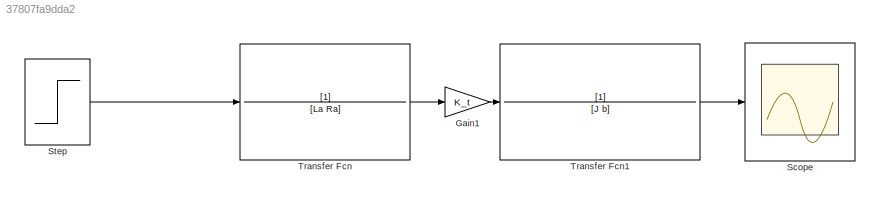
MODEL slx_37807fa9dda2
KIND model
CONFIG AbsTol = auto
CONFIG EnableMultiTasking = off
CONFIG FixedStep = auto
CONFIG MaxStep = auto
CONFIG MinStep = auto
CONFIG RelTol = 1e-3
CONFIG SampleTimeConstraint = Unconstrained
CONFIG SolverName = VariableStepAuto
CONFIG StartTime = 0.0
CONFIG StopTime = 100.0
BLOCK [Gain] Gain1
  Gain = K_t
BLOCK [Scope] Scope
  Floating = off
  NumInputPorts = 1
  ScopeSpecificationString = Simulink.scopes.TimeScopeBlockCfg('CurrentConfiguration', extmgr.ConfigurationSet(extmgr.Configuration('Core','General UI',true),extmgr.Configuration('Core','Source UI',true),extmgr.Configuration('Sources','WiredSimulink',true),extmgr.Configuration('Visuals','Time Domain',true,'SerializedDisplays',{struct('MinYLimReal','-1630.34071','MaxYLimReal','14673.0664','YLabelReal','','MinYLimMag','  0.0000...<+1499ch>
BLOCK [Step] Step
  After = 60
  SampleTime = 0
BLOCK [TransferFcn] Transfer Fcn
  Denominator = [La Ra]
BLOCK [TransferFcn] Transfer Fcn1
  Denominator = [J b]
LINE Gain1:1 -> Transfer Fcn1:1
LINE Step:1 -> Transfer Fcn:1
LINE Transfer Fcn1:1 -> Scope:1
LINE Transfer Fcn:1 -> Gain1:1
